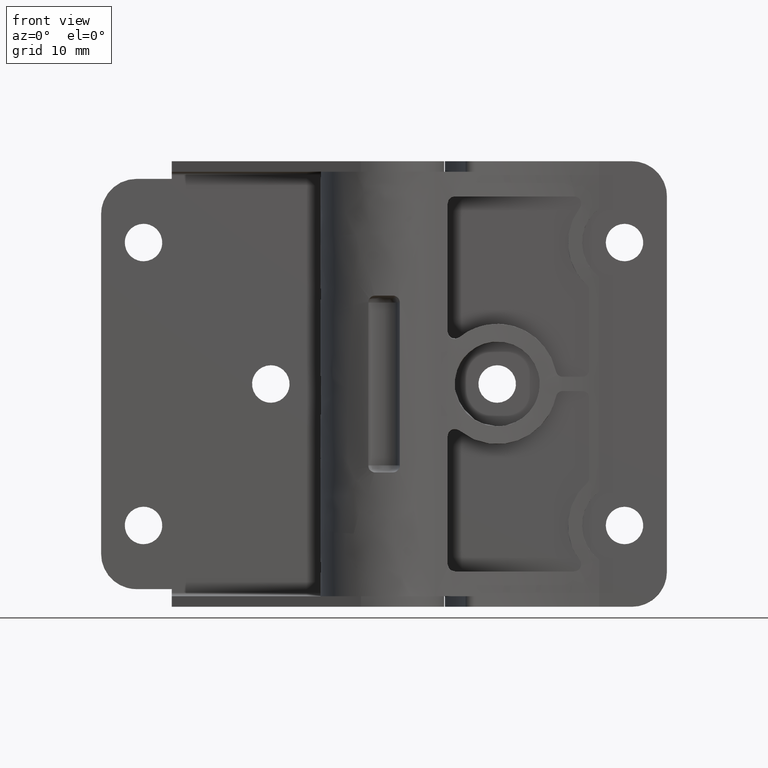
[diagram: clean part render]
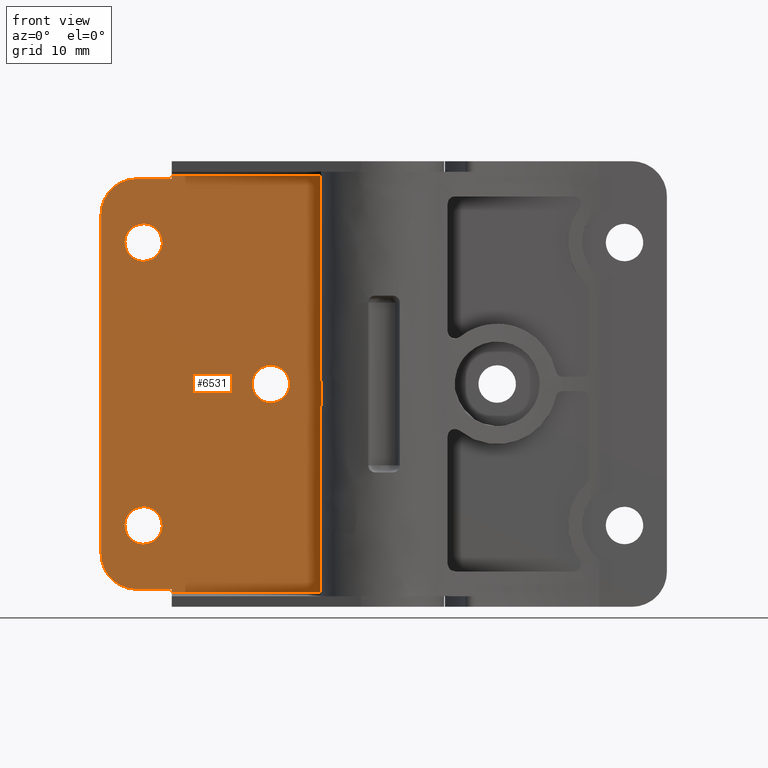
[diagram: same view with one face highlighted and labeled with its STEP entity id]
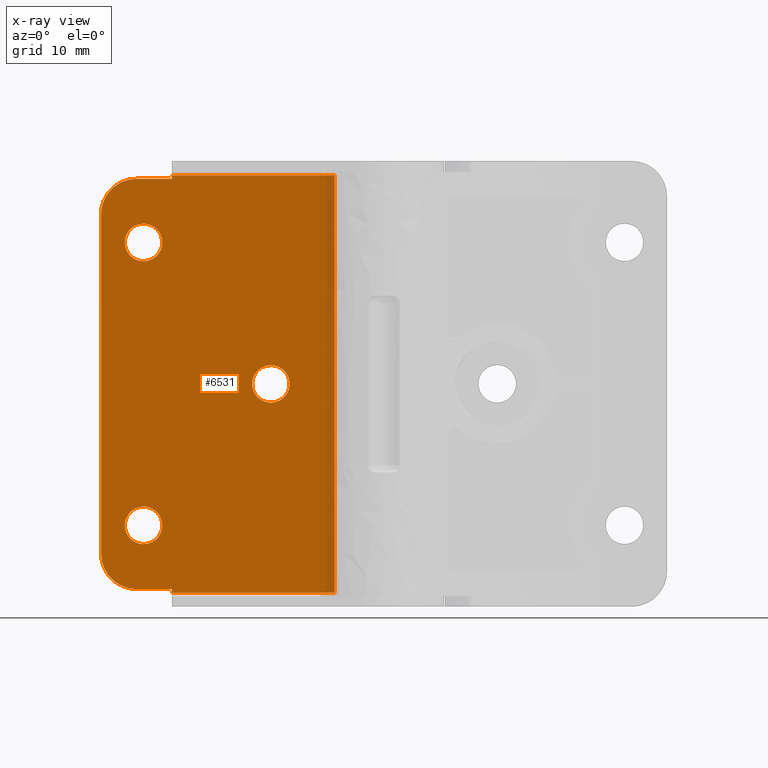
[diagram: x-ray of the same camera — body ghosted, the highlighted face saturated]
A machine part, front view. The second image highlights one B-rep face of the part: STEP entity #6531.
The next image is the same camera in x-ray: the body ghosted, the highlighted face saturated — about 4% of this face is hidden behind the body in this view.
In plain terms, the highlighted face is a freeform B-spline surface patch.
Its self-contained STEP definition (entity closure, byte-faithful):
#4505=CARTESIAN_POINT('',(-31.358177065614001,7.500000000000000,51.292083396233650));
#4506=VERTEX_POINT('',#4505);
#4512=CARTESIAN_POINT('',(-34.000007999999902,7.500000000000000,54.149999999999999));
#4513=VERTEX_POINT('',#4512);
#4514=CARTESIAN_POINT('',(-31.358177065614001,7.499999999999999,51.292083396233650));
#4515=CARTESIAN_POINT('',(-31.350007999999892,7.500000000000001,51.395881216341706));
#4516=CARTESIAN_POINT('',(-31.350007999999900,7.500000000000000,51.500000000000000));
#4517=CARTESIAN_POINT('',(-31.350007999999892,7.500000000000000,54.149999999999984));
#4518=CARTESIAN_POINT('',(-34.000007999999902,7.500000000000000,54.149999999999999));
#4526=(BOUNDED_CURVE()B_SPLINE_CURVE(2,(#4514,#4515,#4516,#4517,#4518),.UNSPECIFIED.,.F.,.U.)B_SPLINE_CURVE_WITH_KNOTS((3,2,3),(0.736331300621403,0.750000000000000,1.0),.UNSPECIFIED.)CURVE()GEOMETRIC_REPRESENTATION_ITEM()RATIONAL_B_SPLINE_CURVE((0.969723356148100,0.983986122568038,1.0,0.707106781186548,1.0))REPRESENTATION_ITEM(''));
#4527=EDGE_CURVE('',#4506,#4513,#4526,.T.);
#4529=CARTESIAN_POINT('',(-36.641838934385788,7.500000000000000,51.707916603766350));
#4530=VERTEX_POINT('',#4529);
#4531=CARTESIAN_POINT('',(-34.000007999999902,7.500000000000000,54.149999999999999));
#4532=CARTESIAN_POINT('',(-36.449642802731248,7.500000000000001,54.149999999999999));
#4533=CARTESIAN_POINT('',(-36.641838934385781,7.500000000000000,51.707916603766343));
#4541=(BOUNDED_CURVE()B_SPLINE_CURVE(2,(#4531,#4532,#4533),.UNSPECIFIED.,.F.,.U.)B_SPLINE_CURVE_WITH_KNOTS((3,3),(0.0,0.236331300621403),.UNSPECIFIED.)CURVE()GEOMETRIC_REPRESENTATION_ITEM()RATIONAL_B_SPLINE_CURVE((1.0,0.723120658618510,0.969723356148100))REPRESENTATION_ITEM(''));
#4542=EDGE_CURVE('',#4513,#4530,#4541,.T.);
#4588=CARTESIAN_POINT('',(-34.000007999999902,7.500000000000000,48.849999999999987));
#4589=VERTEX_POINT('',#4588);
#4590=CARTESIAN_POINT('',(-36.641838934385795,7.500000000000000,51.707916603766350));
#4591=CARTESIAN_POINT('',(-36.650007999999900,7.500000000000000,51.604118783658301));
#4592=CARTESIAN_POINT('',(-36.650007999999893,7.500000000000000,51.500000000000000));
#4593=CARTESIAN_POINT('',(-36.650007999999893,7.500000000000000,48.849999999999980));
#4594=CARTESIAN_POINT('',(-34.000007999999902,7.500000000000000,48.849999999999987));
#4602=(BOUNDED_CURVE()B_SPLINE_CURVE(2,(#4590,#4591,#4592,#4593,#4594),.UNSPECIFIED.,.F.,.U.)B_SPLINE_CURVE_WITH_KNOTS((3,2,3),(0.236331300621403,0.250000000000000,0.500000000000000),.UNSPECIFIED.)CURVE()GEOMETRIC_REPRESENTATION_ITEM()RATIONAL_B_SPLINE_CURVE((0.969723356148100,0.983986122568037,1.0,0.707106781186548,1.0))REPRESENTATION_ITEM(''));
#4603=EDGE_CURVE('',#4530,#4589,#4602,.T.);
#4605=CARTESIAN_POINT('',(-34.000007999999902,7.500000000000000,48.849999999999987));
#4606=CARTESIAN_POINT('',(-31.550373197268531,7.500000000000000,48.850000000000001));
#4607=CARTESIAN_POINT('',(-31.358177065613997,7.500000000000000,51.292083396233650));
#4615=(BOUNDED_CURVE()B_SPLINE_CURVE(2,(#4605,#4606,#4607),.UNSPECIFIED.,.F.,.U.)B_SPLINE_CURVE_WITH_KNOTS((3,3),(0.500000000000000,0.736331300621404),.UNSPECIFIED.)CURVE()GEOMETRIC_REPRESENTATION_ITEM()RATIONAL_B_SPLINE_CURVE((1.0,0.723120658618509,0.969723356148102))REPRESENTATION_ITEM(''));
#4616=EDGE_CURVE('',#4589,#4506,#4615,.T.);
#4687=CARTESIAN_POINT('',(-13.358184065613900,7.500000000000000,31.292083396233650));
#4688=VERTEX_POINT('',#4687);
#4694=CARTESIAN_POINT('',(-16.000014999999799,7.500000000000000,34.149999999999999));
#4695=VERTEX_POINT('',#4694);
#4696=CARTESIAN_POINT('',(-13.358184065613898,7.500000000000000,31.292083396233650));
#4697=CARTESIAN_POINT('',(-13.350014999999795,7.500000000000000,31.395881216341706));
#4698=CARTESIAN_POINT('',(-13.350014999999800,7.500000000000000,31.500000000000000));
#4699=CARTESIAN_POINT('',(-13.350014999999800,7.500000000000000,34.149999999999999));
#4700=CARTESIAN_POINT('',(-16.000014999999799,7.500000000000000,34.149999999999999));
#4708=(BOUNDED_CURVE()B_SPLINE_CURVE(2,(#4696,#4697,#4698,#4699,#4700),.UNSPECIFIED.,.F.,.U.)B_SPLINE_CURVE_WITH_KNOTS((3,2,3),(0.736331300621403,0.750000000000000,1.0),.UNSPECIFIED.)CURVE()GEOMETRIC_REPRESENTATION_ITEM()RATIONAL_B_SPLINE_CURVE((0.969723356148101,0.983986122568038,1.0,0.707106781186548,1.0))REPRESENTATION_ITEM(''));
#4709=EDGE_CURVE('',#4688,#4695,#4708,.T.);
#4711=CARTESIAN_POINT('',(-18.641845934385699,7.500000000000000,31.707916603766350));
#4712=VERTEX_POINT('',#4711);
#4713=CARTESIAN_POINT('',(-16.000014999999799,7.500000000000000,34.149999999999999));
#4714=CARTESIAN_POINT('',(-18.449649802731162,7.500000000000001,34.150000000000013));
#4715=CARTESIAN_POINT('',(-18.641845934385696,7.500000000000001,31.707916603766350));
#4723=(BOUNDED_CURVE()B_SPLINE_CURVE(2,(#4713,#4714,#4715),.UNSPECIFIED.,.F.,.U.)B_SPLINE_CURVE_WITH_KNOTS((3,3),(0.0,0.236331300621404),.UNSPECIFIED.)CURVE()GEOMETRIC_REPRESENTATION_ITEM()RATIONAL_B_SPLINE_CURVE((1.0,0.723120658618510,0.969723356148101))REPRESENTATION_ITEM(''));
#4724=EDGE_CURVE('',#4695,#4712,#4723,.T.);
#4770=CARTESIAN_POINT('',(-16.000014999999799,7.500000000000000,28.850000000000001));
#4771=VERTEX_POINT('',#4770);
#4772=CARTESIAN_POINT('',(-18.641845934385703,7.500000000000000,31.707916603766350));
#4773=CARTESIAN_POINT('',(-18.650014999999797,7.500000000000000,31.604118783658294));
#4774=CARTESIAN_POINT('',(-18.650014999999801,7.500000000000000,31.500000000000000));
#4775=CARTESIAN_POINT('',(-18.650014999999801,7.500000000000000,28.850000000000005));
#4776=CARTESIAN_POINT('',(-16.000014999999799,7.500000000000000,28.850000000000001));
#4784=(BOUNDED_CURVE()B_SPLINE_CURVE(2,(#4772,#4773,#4774,#4775,#4776),.UNSPECIFIED.,.F.,.U.)B_SPLINE_CURVE_WITH_KNOTS((3,2,3),(0.236331300621403,0.250000000000000,0.500000000000000),.UNSPECIFIED.)CURVE()GEOMETRIC_REPRESENTATION_ITEM()RATIONAL_B_SPLINE_CURVE((0.969723356148101,0.983986122568038,1.0,0.707106781186548,1.0))REPRESENTATION_ITEM(''));
#4785=EDGE_CURVE('',#4712,#4771,#4784,.T.);
#4787=CARTESIAN_POINT('',(-16.000014999999799,7.500000000000000,28.850000000000001));
#4788=CARTESIAN_POINT('',(-13.550380197268426,7.500000000000000,28.850000000000001));
#4789=CARTESIAN_POINT('',(-13.358184065613900,7.500000000000000,31.292083396233654));
#4797=(BOUNDED_CURVE()B_SPLINE_CURVE(2,(#4787,#4788,#4789),.UNSPECIFIED.,.F.,.U.)B_SPLINE_CURVE_WITH_KNOTS((3,3),(0.500000000000000,0.736331300621404),.UNSPECIFIED.)CURVE()GEOMETRIC_REPRESENTATION_ITEM()RATIONAL_B_SPLINE_CURVE((1.0,0.723120658618509,0.969723356148102))REPRESENTATION_ITEM(''));
#4798=EDGE_CURVE('',#4771,#4688,#4797,.T.);
#4869=CARTESIAN_POINT('',(-31.358177065614001,7.500000000000000,11.292083396233650));
#4870=VERTEX_POINT('',#4869);
#4876=CARTESIAN_POINT('',(-34.000007999999902,7.500000000000000,14.150000000000000));
#4877=VERTEX_POINT('',#4876);
#4878=CARTESIAN_POINT('',(-31.358177065614001,7.499999999999999,11.292083396233645));
#4879=CARTESIAN_POINT('',(-31.350007999999892,7.500000000000001,11.395881216341710));
#4880=CARTESIAN_POINT('',(-31.350007999999900,7.500000000000000,11.500000000000000));
#4881=CARTESIAN_POINT('',(-31.350007999999892,7.500000000000000,14.150000000000004));
#4882=CARTESIAN_POINT('',(-34.000007999999902,7.500000000000000,14.150000000000000));
#4890=(BOUNDED_CURVE()B_SPLINE_CURVE(2,(#4878,#4879,#4880,#4881,#4882),.UNSPECIFIED.,.F.,.U.)B_SPLINE_CURVE_WITH_KNOTS((3,2,3),(0.736331300621403,0.750000000000000,1.0),.UNSPECIFIED.)CURVE()GEOMETRIC_REPRESENTATION_ITEM()RATIONAL_B_SPLINE_CURVE((0.969723356148100,0.983986122568038,1.0,0.707106781186548,1.0))REPRESENTATION_ITEM(''));
#4891=EDGE_CURVE('',#4870,#4877,#4890,.T.);
#4893=CARTESIAN_POINT('',(-36.641838934385788,7.500000000000000,11.707916603766350));
#4894=VERTEX_POINT('',#4893);
#4895=CARTESIAN_POINT('',(-34.000007999999902,7.500000000000000,14.150000000000000));
#4896=CARTESIAN_POINT('',(-36.449642802731248,7.500000000000000,14.149999999999997));
#4897=CARTESIAN_POINT('',(-36.641838934385788,7.500000000000000,11.707916603766350));
#4905=(BOUNDED_CURVE()B_SPLINE_CURVE(2,(#4895,#4896,#4897),.UNSPECIFIED.,.F.,.U.)B_SPLINE_CURVE_WITH_KNOTS((3,3),(0.0,0.236331300621403),.UNSPECIFIED.)CURVE()GEOMETRIC_REPRESENTATION_ITEM()RATIONAL_B_SPLINE_CURVE((1.0,0.723120658618510,0.969723356148100))REPRESENTATION_ITEM(''));
#4906=EDGE_CURVE('',#4877,#4894,#4905,.T.);
#4952=CARTESIAN_POINT('',(-34.000007999999902,7.500000000000000,8.850000000000000));
#4953=VERTEX_POINT('',#4952);
#4954=CARTESIAN_POINT('',(-36.641838934385795,7.500000000000000,11.707916603766359));
#4955=CARTESIAN_POINT('',(-36.650007999999893,7.500000000000000,11.604118783658290));
#4956=CARTESIAN_POINT('',(-36.650007999999893,7.500000000000000,11.500000000000000));
#4957=CARTESIAN_POINT('',(-36.650007999999893,7.500000000000000,8.850000000000000));
#4958=CARTESIAN_POINT('',(-34.000007999999902,7.500000000000000,8.850000000000000));
#4966=(BOUNDED_CURVE()B_SPLINE_CURVE(2,(#4954,#4955,#4956,#4957,#4958),.UNSPECIFIED.,.F.,.U.)B_SPLINE_CURVE_WITH_KNOTS((3,2,3),(0.236331300621403,0.250000000000000,0.500000000000000),.UNSPECIFIED.)CURVE()GEOMETRIC_REPRESENTATION_ITEM()RATIONAL_B_SPLINE_CURVE((0.969723356148100,0.983986122568037,1.0,0.707106781186548,1.0))REPRESENTATION_ITEM(''));
#4967=EDGE_CURVE('',#4894,#4953,#4966,.T.);
#4969=CARTESIAN_POINT('',(-34.000007999999902,7.500000000000000,8.850000000000000));
#4970=CARTESIAN_POINT('',(-31.550373197268531,7.500000000000000,8.850000000000000));
#4971=CARTESIAN_POINT('',(-31.358177065613997,7.500000000000000,11.292083396233647));
#4979=(BOUNDED_CURVE()B_SPLINE_CURVE(2,(#4969,#4970,#4971),.UNSPECIFIED.,.F.,.U.)B_SPLINE_CURVE_WITH_KNOTS((3,3),(0.500000000000000,0.736331300621404),.UNSPECIFIED.)CURVE()GEOMETRIC_REPRESENTATION_ITEM()RATIONAL_B_SPLINE_CURVE((1.0,0.723120658618509,0.969723356148102))REPRESENTATION_ITEM(''));
#4980=EDGE_CURVE('',#4953,#4870,#4979,.T.);
#5013=CARTESIAN_POINT('',(-7.000014999999790,7.500000000000000,1.999999999999780));
#5014=VERTEX_POINT('',#5013);
#5030=CARTESIAN_POINT('',(-30.000007999999902,7.500000000000000,1.999999999999800));
#5031=VERTEX_POINT('',#5030);
#5032=CARTESIAN_POINT('',(-30.000007999999902,7.500000000000000,1.999999999999800));
#5033=CARTESIAN_POINT('',(-7.000014999999790,7.500000000000000,1.999999999999780));
#5034=QUASI_UNIFORM_CURVE('',1,(#5032,#5033),.UNSPECIFIED.,.F.,.U.);
#5035=EDGE_CURVE('',#5031,#5014,#5034,.T.);
#5074=CARTESIAN_POINT('',(-30.000007999999902,7.500000000000000,61.0));
#5075=VERTEX_POINT('',#5074);
#5091=CARTESIAN_POINT('',(-7.000014999999790,7.500000000000000,61.0));
#5092=VERTEX_POINT('',#5091);
#5093=CARTESIAN_POINT('',(-7.000014999999790,7.500000000000000,61.0));
#5094=CARTESIAN_POINT('',(-30.000007999999902,7.500000000000000,61.0));
#5095=QUASI_UNIFORM_CURVE('',1,(#5093,#5094),.UNSPECIFIED.,.F.,.U.);
#5096=EDGE_CURVE('',#5092,#5075,#5095,.T.);
#5826=CARTESIAN_POINT('',(-35.000007999999902,7.500000000000000,60.500000000000000));
#5827=VERTEX_POINT('',#5826);
#5848=CARTESIAN_POINT('',(-40.000007999999902,7.500000000000000,55.500000000000000));
#5849=VERTEX_POINT('',#5848);
#5855=CARTESIAN_POINT('',(-35.000007999999902,7.500000000000000,60.500000000000000));
#5856=CARTESIAN_POINT('',(-40.000007999999895,7.500000000000000,60.500000000000000));
#5857=CARTESIAN_POINT('',(-40.000007999999902,7.500000000000000,55.500000000000000));
#5865=(BOUNDED_CURVE()B_SPLINE_CURVE(2,(#5855,#5856,#5857),.UNSPECIFIED.,.F.,.U.)CURVE()GEOMETRIC_REPRESENTATION_ITEM()QUASI_UNIFORM_CURVE()RATIONAL_B_SPLINE_CURVE((1.0,0.707106781186548,1.0))REPRESENTATION_ITEM(''));
#5866=EDGE_CURVE('',#5827,#5849,#5865,.T.);
#5878=CARTESIAN_POINT('',(-30.000007999999902,7.500000000000000,60.500000000000000));
#5879=VERTEX_POINT('',#5878);
#5891=CARTESIAN_POINT('',(-30.000007999999902,7.500000000000000,60.500000000000000));
#5892=CARTESIAN_POINT('',(-35.000007999999902,7.500000000000000,60.500000000000000));
#5893=QUASI_UNIFORM_CURVE('',1,(#5891,#5892),.UNSPECIFIED.,.F.,.U.);
#5894=EDGE_CURVE('',#5879,#5827,#5893,.T.);
#5906=CARTESIAN_POINT('',(-35.000007912733452,7.500000000000000,2.499999999999915));
#5907=VERTEX_POINT('',#5906);
#5920=CARTESIAN_POINT('',(-30.000007999999902,7.500000000000000,2.499999999999835));
#5921=VERTEX_POINT('',#5920);
#5927=CARTESIAN_POINT('',(-35.000007912733452,7.500000000000000,2.499999999999915));
#5928=CARTESIAN_POINT('',(-30.000007999999902,7.500000000000000,2.499999999999835));
#5929=QUASI_UNIFORM_CURVE('',1,(#5927,#5928),.UNSPECIFIED.,.F.,.U.);
#5930=EDGE_CURVE('',#5907,#5921,#5929,.T.);
#5951=CARTESIAN_POINT('',(-40.000007999999902,7.500000000000000,7.499999999999920));
#5952=VERTEX_POINT('',#5951);
#5974=CARTESIAN_POINT('',(-40.000007999999902,7.500000000000000,7.499999999999920));
#5975=CARTESIAN_POINT('',(-40.000007999999887,7.500000000000000,5.428932162574697));
#5976=CARTESIAN_POINT('',(-38.535541875079289,7.500000000000000,3.964466063213837));
#5977=CARTESIAN_POINT('',(-37.071075750158677,7.500000000000000,2.499999963852976));
#5978=CARTESIAN_POINT('',(-35.000007912733452,7.500000000000000,2.499999999999921));
#5986=(BOUNDED_CURVE()B_SPLINE_CURVE(2,(#5974,#5975,#5976,#5977,#5978),.UNSPECIFIED.,.F.,.U.)B_SPLINE_CURVE_WITH_KNOTS((3,2,3),(0.0,0.500000000000000,1.0),.UNSPECIFIED.)CURVE()GEOMETRIC_REPRESENTATION_ITEM()RATIONAL_B_SPLINE_CURVE((1.0,0.923879530841516,1.0,0.923879530841516,1.0))REPRESENTATION_ITEM(''));
#5987=EDGE_CURVE('',#5952,#5907,#5986,.T.);
#6010=CARTESIAN_POINT('',(-7.000014999999790,7.500000000000000,1.999999999999780));
#6011=CARTESIAN_POINT('',(-7.000014999999790,7.500000000000000,61.0));
#6012=QUASI_UNIFORM_CURVE('',1,(#6010,#6011),.UNSPECIFIED.,.F.,.U.);
#6013=EDGE_CURVE('',#5014,#5092,#6012,.T.);
#6106=CARTESIAN_POINT('',(-40.000007999999902,7.500000000000000,7.499999999999920));
#6107=CARTESIAN_POINT('',(-40.000007999999902,7.500000000000000,55.500000000000000));
#6108=QUASI_UNIFORM_CURVE('',1,(#6106,#6107),.UNSPECIFIED.,.F.,.U.);
#6109=EDGE_CURVE('',#5952,#5849,#6108,.T.);
#6377=CARTESIAN_POINT('',(-30.000007999999902,7.500000000000000,1.999999999999800));
#6378=CARTESIAN_POINT('',(-30.000007999999902,7.500000000000000,2.499999999999835));
#6379=QUASI_UNIFORM_CURVE('',1,(#6377,#6378),.UNSPECIFIED.,.F.,.U.);
#6380=EDGE_CURVE('',#5031,#5921,#6379,.T.);
#6399=CARTESIAN_POINT('',(-30.000007999999902,7.500000000000000,60.500000000000000));
#6400=CARTESIAN_POINT('',(-30.000007999999902,7.500000000000000,61.0));
#6401=QUASI_UNIFORM_CURVE('',1,(#6399,#6400),.UNSPECIFIED.,.F.,.U.);
#6402=EDGE_CURVE('',#5879,#5075,#6401,.T.);
#6496=CARTESIAN_POINT('',(-41.648357276609197,7.500000000000000,63.947049885646578));
#6497=CARTESIAN_POINT('',(-41.648357276609197,7.500000000000000,-0.947051468150102));
#6498=CARTESIAN_POINT('',(-5.351664543218783,7.500000000000000,63.947049885646578));
#6499=CARTESIAN_POINT('',(-5.351664543218783,7.500000000000000,-0.947051468150102));
#6500=B_SPLINE_SURFACE_WITH_KNOTS('',1,1,((#6496,#6498),(#6497,#6499)),.UNSPECIFIED.,.F.,.F.,.U.,(2,2),(2,2),(0.0,64.894101353796685),(0.0,36.296692733390422),.UNSPECIFIED.);
#6501=ORIENTED_EDGE('',*,*,#6013,.T.);
#6502=ORIENTED_EDGE('',*,*,#5096,.T.);
#6503=ORIENTED_EDGE('',*,*,#6402,.F.);
#6504=ORIENTED_EDGE('',*,*,#5894,.T.);
#6505=ORIENTED_EDGE('',*,*,#5866,.T.);
#6506=ORIENTED_EDGE('',*,*,#6109,.F.);
#6507=ORIENTED_EDGE('',*,*,#5987,.T.);
#6508=ORIENTED_EDGE('',*,*,#5930,.T.);
#6509=ORIENTED_EDGE('',*,*,#6380,.F.);
#6510=ORIENTED_EDGE('',*,*,#5035,.T.);
#6511=EDGE_LOOP('',(#6501,#6502,#6503,#6504,#6505,#6506,#6507,#6508,#6509,#6510));
#6512=FACE_OUTER_BOUND('',#6511,.T.);
#6513=ORIENTED_EDGE('',*,*,#4980,.F.);
#6514=ORIENTED_EDGE('',*,*,#4967,.F.);
#6515=ORIENTED_EDGE('',*,*,#4906,.F.);
#6516=ORIENTED_EDGE('',*,*,#4891,.F.);
#6517=EDGE_LOOP('',(#6513,#6514,#6515,#6516));
#6518=FACE_BOUND('',#6517,.T.);
#6519=ORIENTED_EDGE('',*,*,#4798,.F.);
#6520=ORIENTED_EDGE('',*,*,#4785,.F.);
#6521=ORIENTED_EDGE('',*,*,#4724,.F.);
#6522=ORIENTED_EDGE('',*,*,#4709,.F.);
#6523=EDGE_LOOP('',(#6519,#6520,#6521,#6522));
#6524=FACE_BOUND('',#6523,.T.);
#6525=ORIENTED_EDGE('',*,*,#4616,.F.);
#6526=ORIENTED_EDGE('',*,*,#4603,.F.);
#6527=ORIENTED_EDGE('',*,*,#4542,.F.);
#6528=ORIENTED_EDGE('',*,*,#4527,.F.);
#6529=EDGE_LOOP('',(#6525,#6526,#6527,#6528));
#6530=FACE_BOUND('',#6529,.T.);
#6531=ADVANCED_FACE('',(#6512,#6518,#6524,#6530),#6500,.T.);